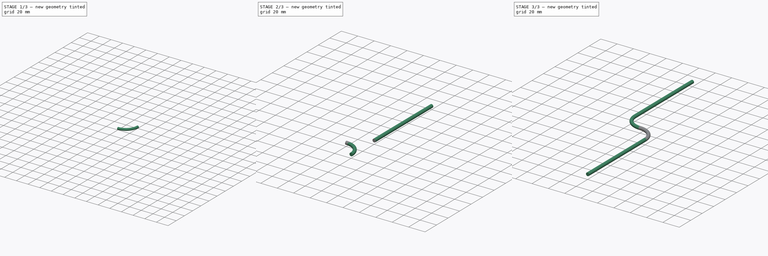
[diagram: build sequence overview — one tinted view per stage of 3, left to right]
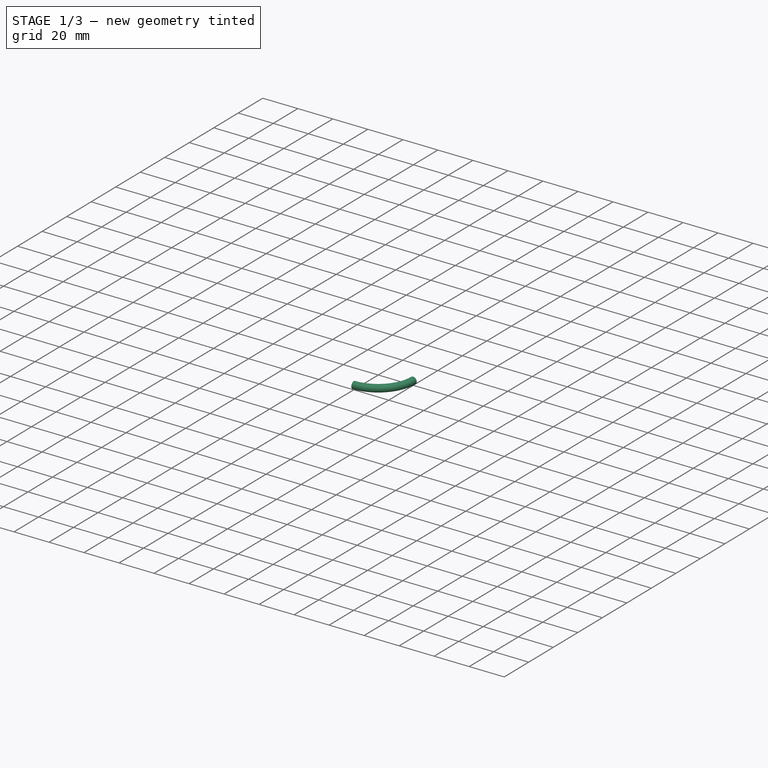
[diagram: stage 1 of 3 — iso view after this stage's code; geometry added in this stage tinted green]
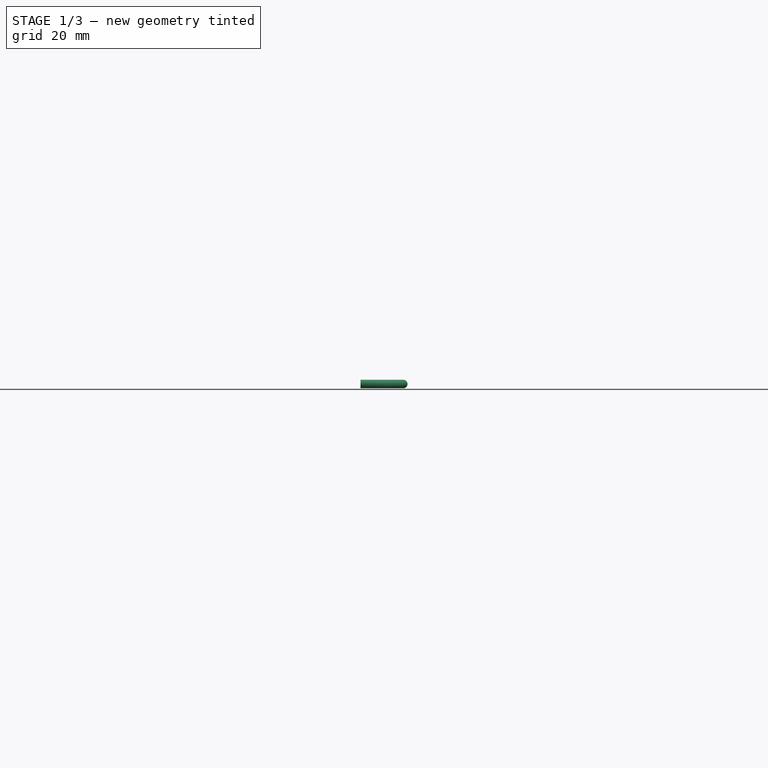
[diagram: stage 1 of 3 — front view after this stage's code; geometry added in this stage tinted green]
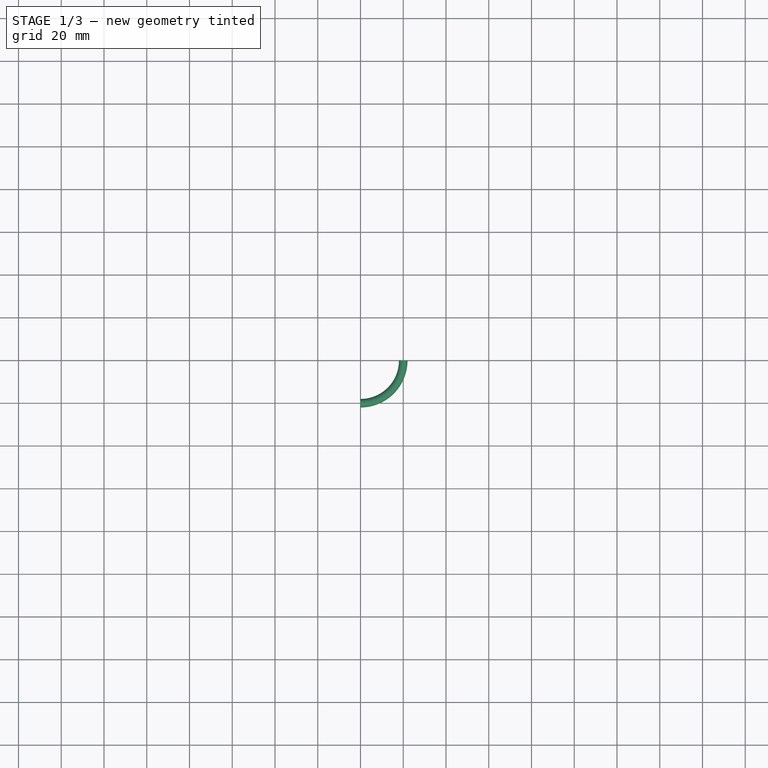
[diagram: stage 1 of 3 — top view after this stage's code; geometry added in this stage tinted green]
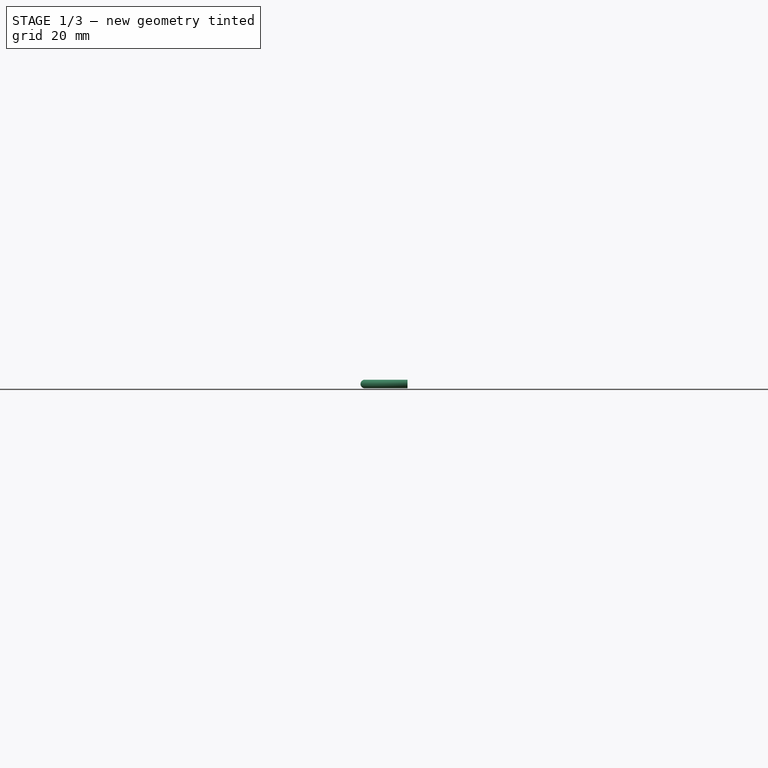
[diagram: stage 1 of 3 — right view after this stage's code; geometry added in this stage tinted green]
FCSTD DOCUMENT  (FreeCAD 0.17R11834 (Git))
Label: wire
License: All rights reserved
LicenseURL: http://en.wikipedia.org/wiki/All_rights_reserved
objects: Sketcher::SketchObject×4, Part::Mirroring×4, Part::Sweep×2, Part::Compound×1
note: 11 computed .brp shape members not serialized (recipe doc carries the construction recipe); baked Part::Feature solids carry a one-line shape summary decoded from their .brp

FEATURE [Part::Sweep] Sweep001
  Frenet = true
  Sections = -> [Sketch002]
  Solid = true
  Spine = -> Sketch001
  Transition = 1
FEATURE [Part::Mirroring] Part__Mirroring  label="temp mirror bend "
  Base = (0,0,0)
  Normal = (1,0,0)
  Source = -> Sweep001
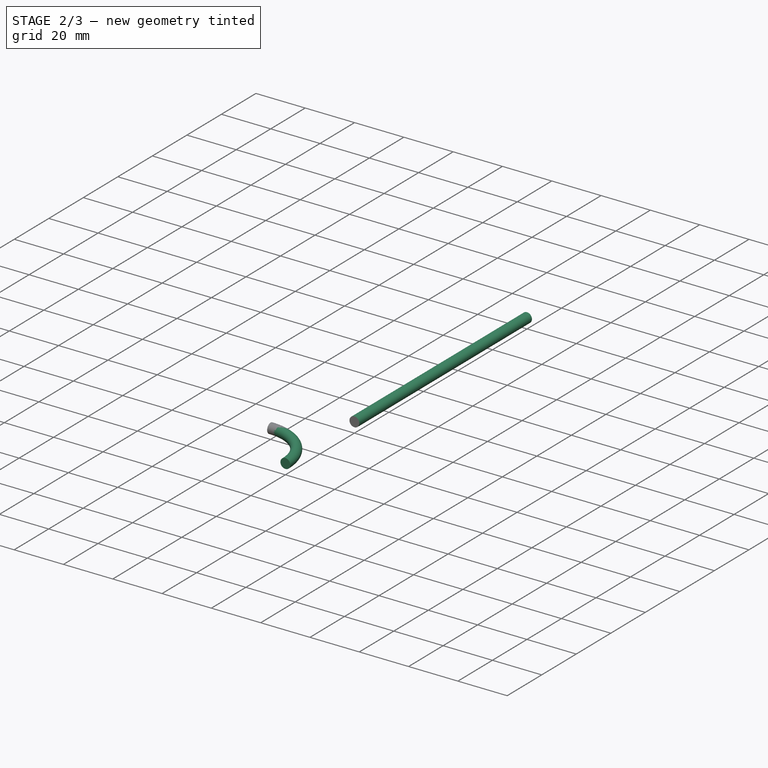
[diagram: stage 2 of 3 — iso view after this stage's code; geometry added in this stage tinted green]
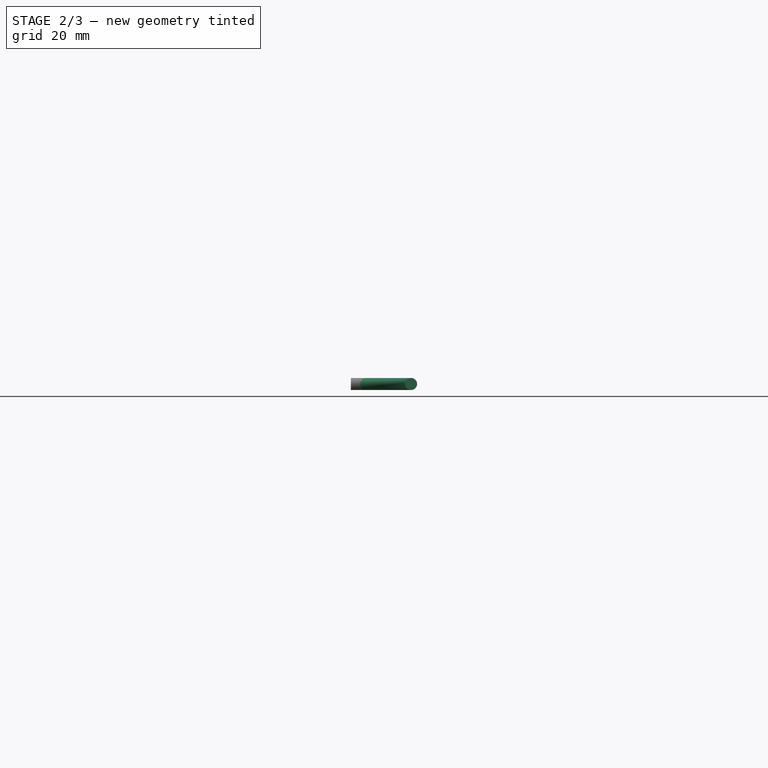
[diagram: stage 2 of 3 — front view after this stage's code; geometry added in this stage tinted green]
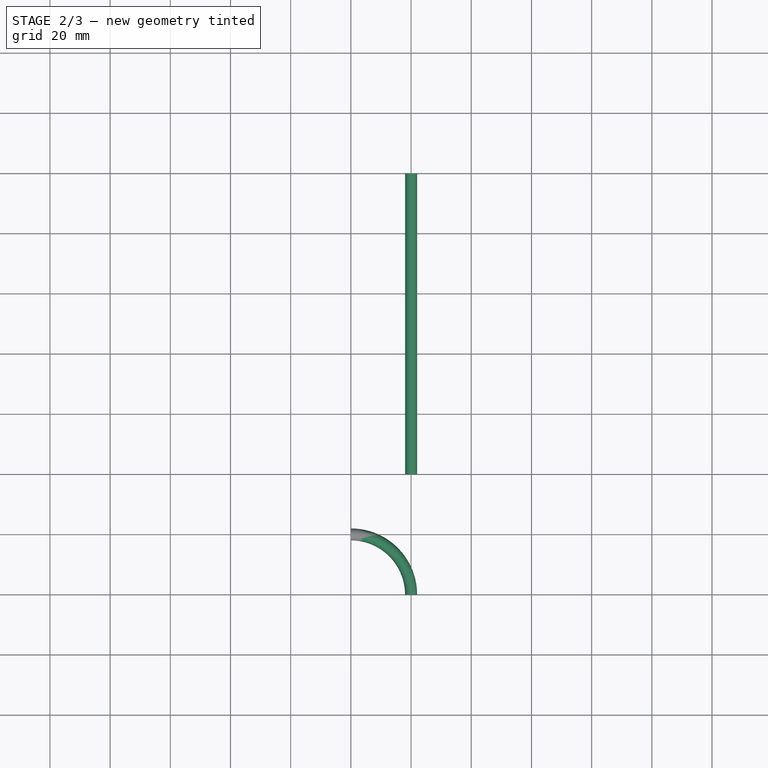
[diagram: stage 2 of 3 — top view after this stage's code; geometry added in this stage tinted green]
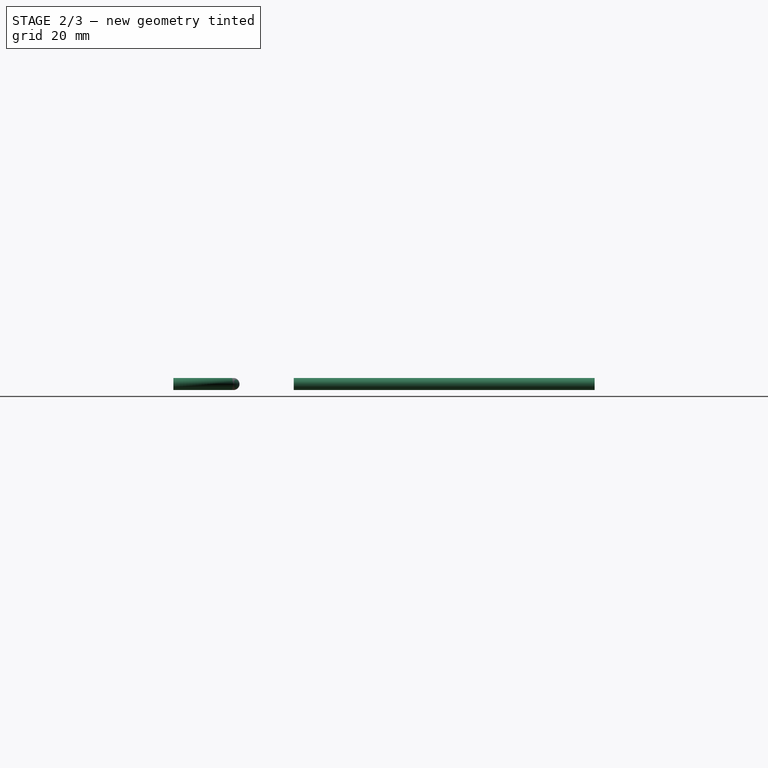
[diagram: stage 2 of 3 — right view after this stage's code; geometry added in this stage tinted green]
FEATURE [Sketcher::SketchObject] Sketch
  sketch-geometry (1):
    g0: LineSegment StartX=-20 StartY=20 StartZ=0 EndX=-20 EndY=120 EndZ=0
  constraints (4):
    c: Vertical(g0)
    c: DistanceY(g0,g0) = 100
    c: DistanceY(g0,g-1) = -20
    c: DistanceX(g0,g-1) = 20
FEATURE [Sketcher::SketchObject] Sketch001
  sketch-geometry (1):
    g0: ArcOfCircle CenterX=0 CenterY=20 CenterZ=0 NormalX=0 NormalY=0 NormalZ=1 Radius=20 StartAngle=3.14159 EndAngle=4.71239
  constraints (4):
    c: Coincident(g0,g-1)
    c: DistanceX(g0,g-1) = 20
    c: DistanceY(g-1,g0) = 20
    c: DistanceX(g0,g-1) = 0
FEATURE [Sketcher::SketchObject] Sketch002
  Placement = pos=(0,0,0) rot=(0.57735,0.57735,0.57735;2.0944rad)
  sketch-geometry (1):
    g0: Circle CenterX=0 CenterY=0 CenterZ=0 NormalX=0 NormalY=0 NormalZ=1 Radius=2
  constraints (2):
    c: Coincident(g0,g-1)
    c: Radius(g0) = 2
FEATURE [Sketcher::SketchObject] Sketch003
  Placement = pos=(0,20,0) rot=(-1,0,0;4.71239rad)
  sketch-geometry (1):
    g0: Circle CenterX=-20 CenterY=0 CenterZ=0 NormalX=0 NormalY=0 NormalZ=1 Radius=2
  constraints (3):
    c: DistanceY(g-1,g0) = 0
    c: DistanceX(g0,g-1) = 20
    c: Radius(g0) = 2
FEATURE [Part::Sweep] Sweep
  Frenet = true
  Sections = -> [Sketch003]
  Solid = true
  Spine = -> Sketch
  Transition = 1
FEATURE [Part::Mirroring] Part__Mirroring001  label="temp straight bend"
  Base = (0,0,0)
  Normal = (1,0,0)
  Source = -> Sweep
FEATURE [Part::Mirroring] Part__Mirroring003  label="lower wire bend"
  Base = (0,0,0)
  Normal = (0,1,0)
  Source = -> Part__Mirroring
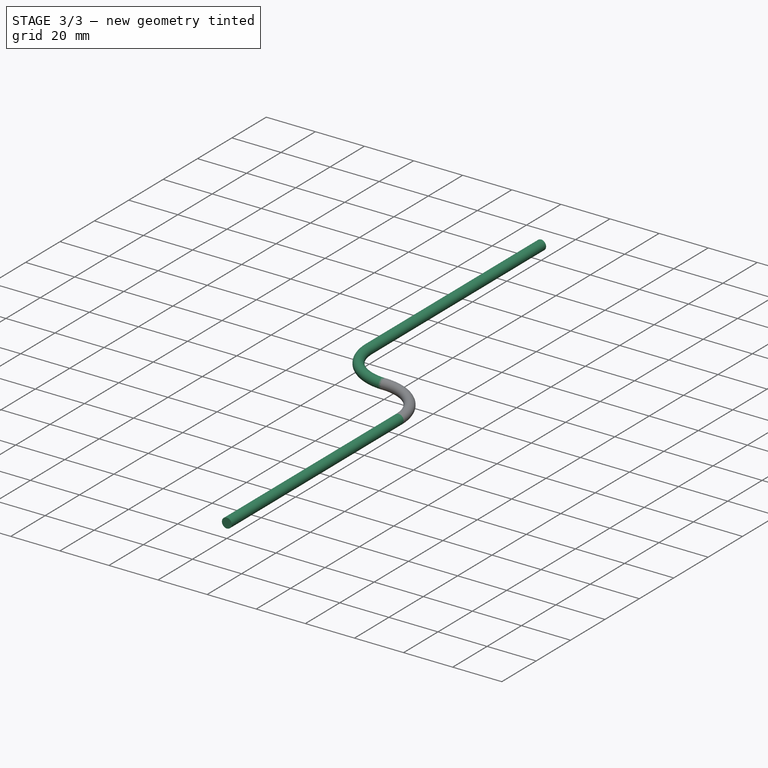
[diagram: stage 3 of 3 — iso view after this stage's code; geometry added in this stage tinted green]
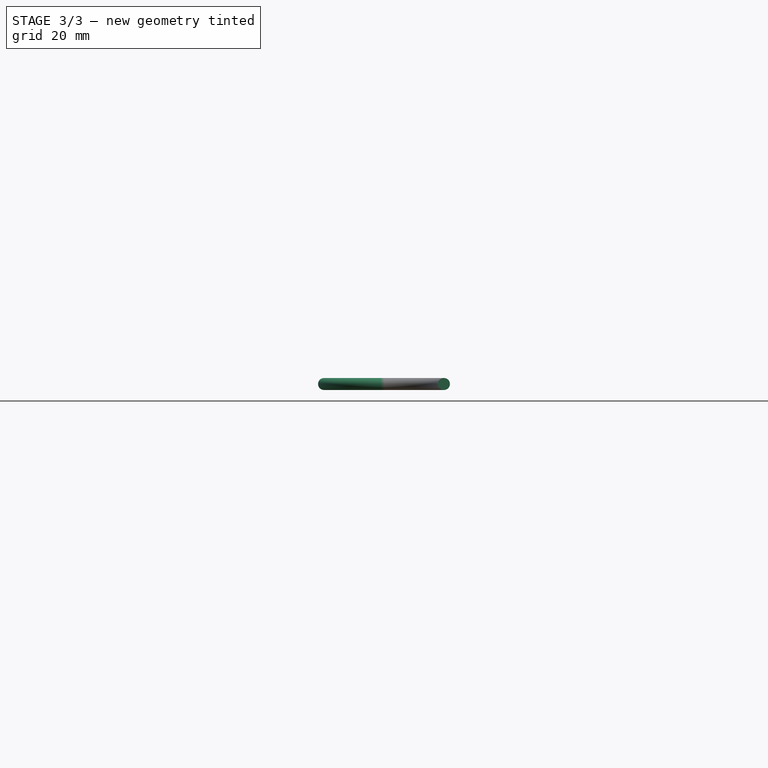
[diagram: stage 3 of 3 — front view after this stage's code; geometry added in this stage tinted green]
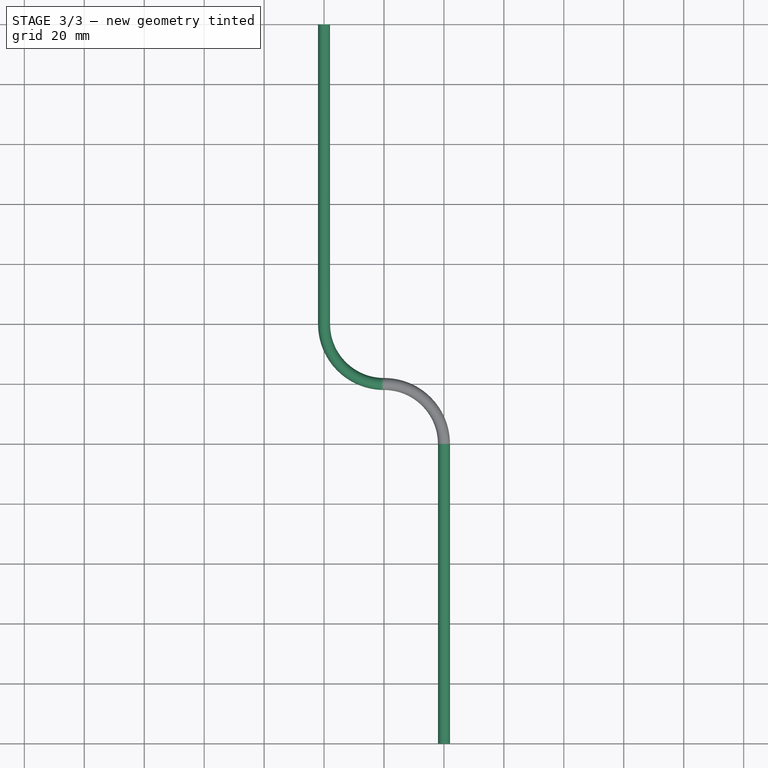
[diagram: stage 3 of 3 — top view after this stage's code; geometry added in this stage tinted green]
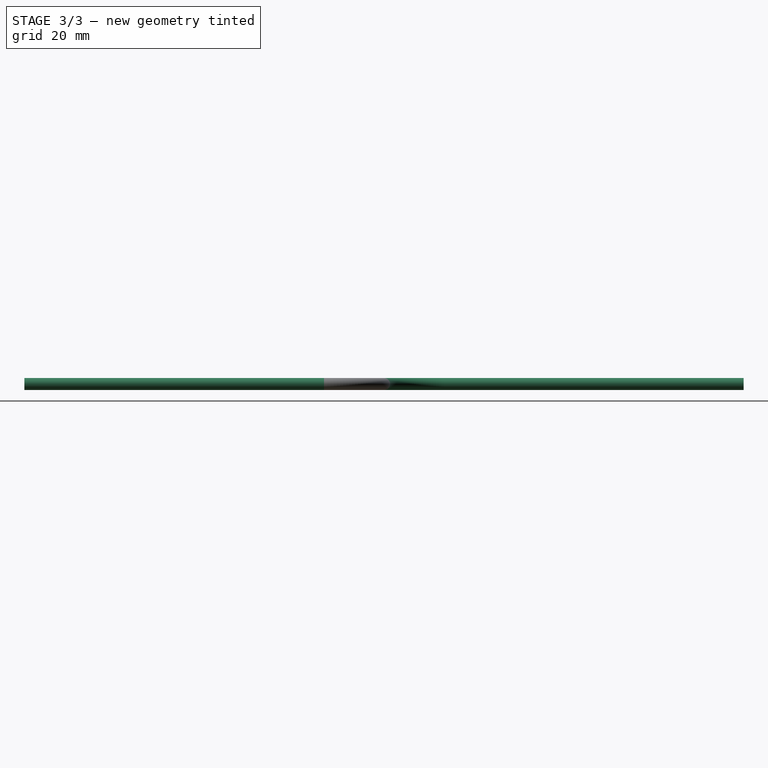
[diagram: stage 3 of 3 — right view after this stage's code; geometry added in this stage tinted green]
FEATURE [Part::Mirroring] Part__Mirroring002  label="Lower wire straight"
  Base = (0,0,0)
  Normal = (0,1,0)
  Source = -> Part__Mirroring001
FEATURE [Part::Compound] Compound
  Links = -> [Part__Mirroring002,Part__Mirroring003,Sweep001,Sweep]
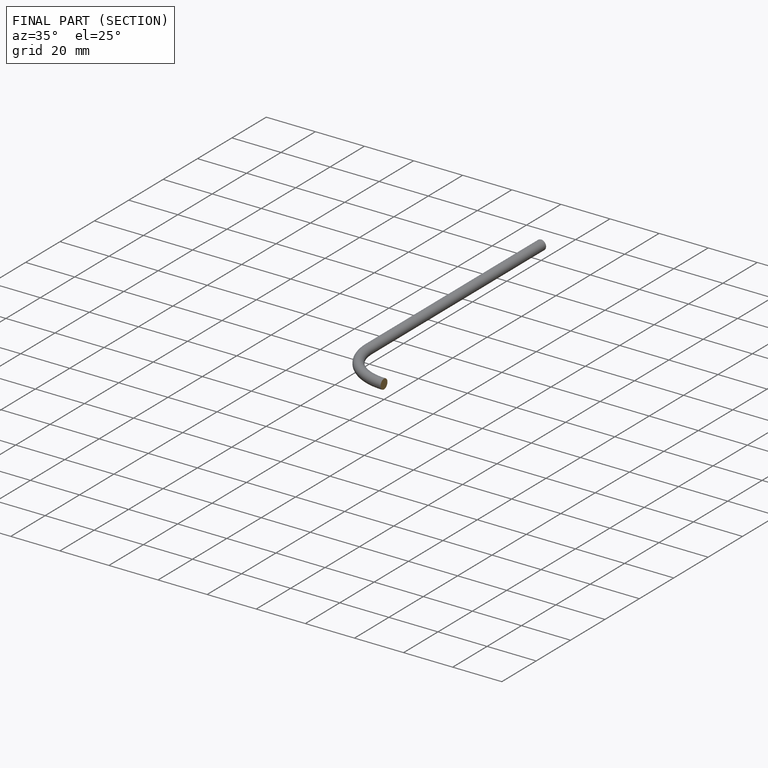
[diagram: finished part — half-section view (interior)]
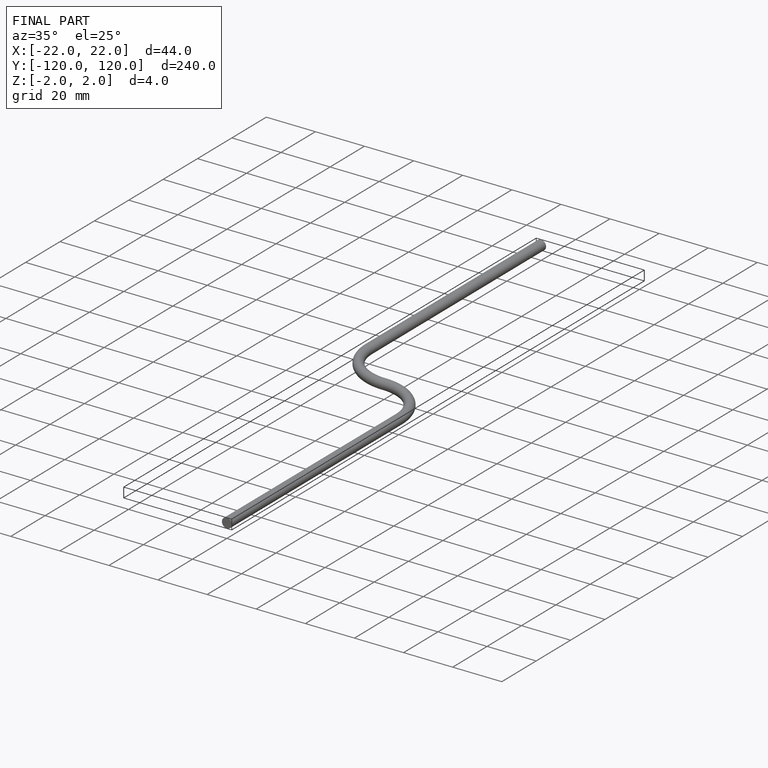
[diagram: finished part — iso view with bounding-box wireframe]
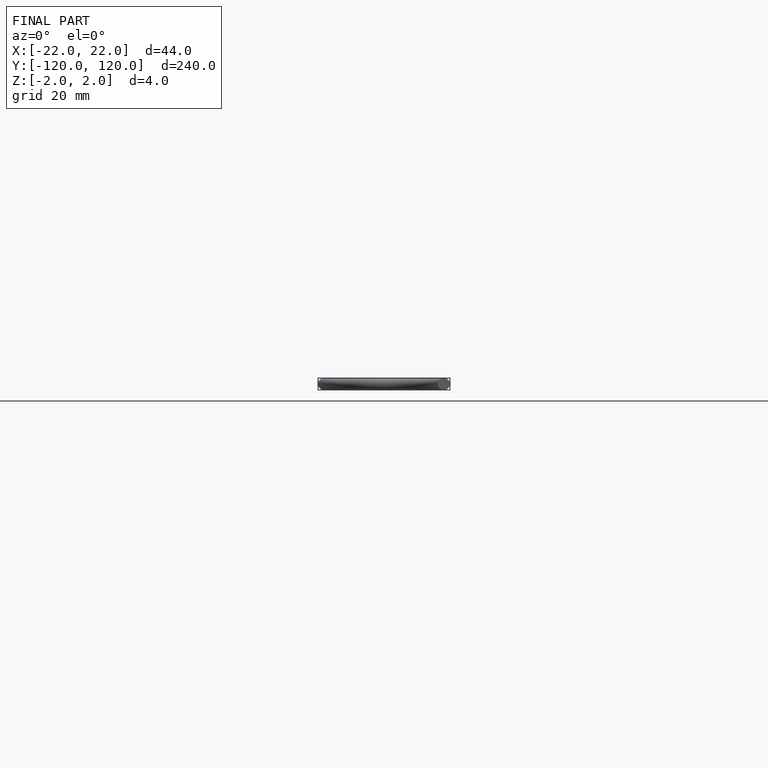
[diagram: finished part — front view with bounding-box wireframe]
